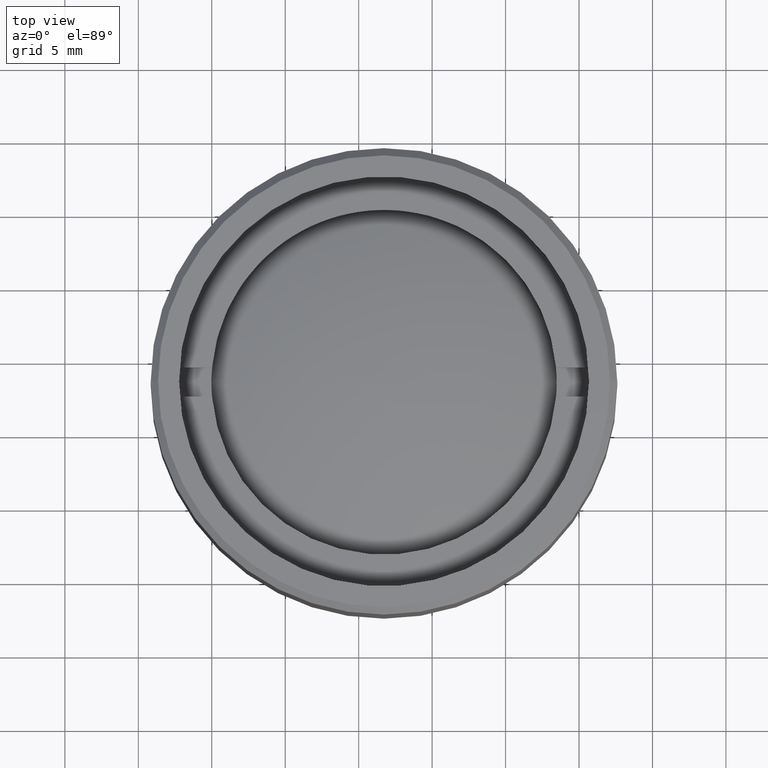
[diagram: clean part render]
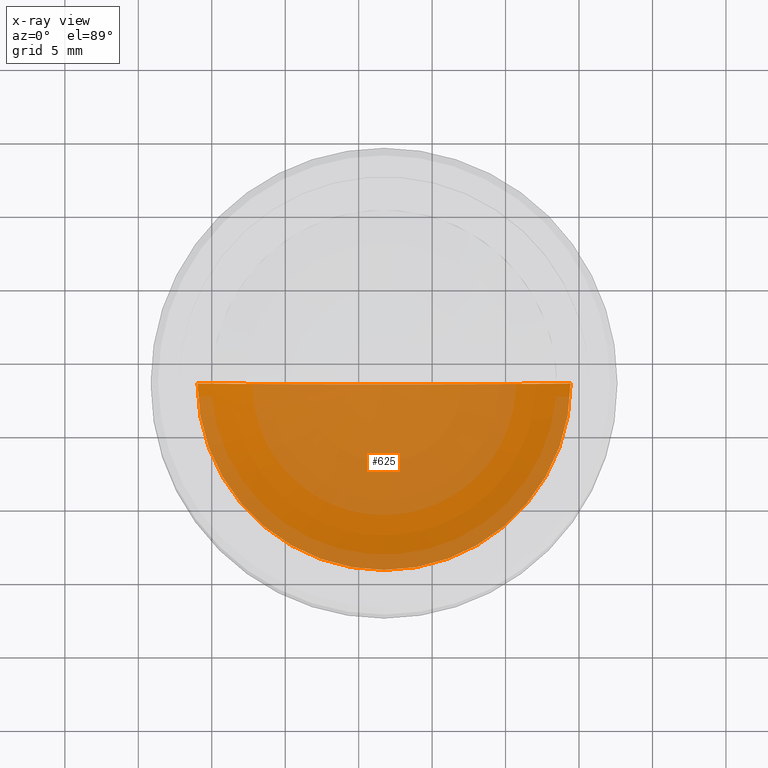
[diagram: x-ray — body ghosted, one internal face saturated and labeled with its STEP entity id]
A machine part, top view, then the same camera in x-ray: the body is ghosted and one INTERNAL B-rep face — a face not visible from any outside direction — is saturated and labeled: STEP entity #625.
In plain terms, the highlighted spherical surface has radius 25.9 mm.
Its self-contained STEP definition (entity closure, byte-faithful):
#47 = AXIS2_PLACEMENT_3D ( 'NONE', #369, #1159, #1302 ) ;
#225 = DIRECTION ( 'NONE',  ( -1.000000000000000000, 0.000000000000000000, 0.000000000000000000 ) ) ;
#252 = CARTESIAN_POINT ( 'NONE',  ( -12.69999999999999929, 0.000000000000000000, -4.672549700908839476 ) ) ;
#369 = CARTESIAN_POINT ( 'NONE',  ( 7.152778793843670539E-17, 0.000000000000000000, -4.672549700908850134 ) ) ;
#374 = CARTESIAN_POINT ( 'NONE',  ( 12.69999999999999929, 1.555301434917139813E-15, -4.672549700908839476 ) ) ;
#410 = CARTESIAN_POINT ( 'NONE',  ( 0.000000000000000000, 0.000000000000000000, 17.89999999999999858 ) ) ;
#540 = VERTEX_POINT ( 'NONE', #374 ) ;
#625 = ADVANCED_FACE ( 'NONE', ( #1668 ), #1551, .T. ) ;
#636 = EDGE_CURVE ( 'NONE', #540, #708, #1539, .T. ) ;
#639 = CARTESIAN_POINT ( 'NONE',  ( 0.000000000000000000, 0.000000000000000000, 17.89999999999999858 ) ) ;
#700 = EDGE_LOOP ( 'NONE', ( #1294, #1425 ) ) ;
#708 = VERTEX_POINT ( 'NONE', #252 ) ;
#919 = EDGE_CURVE ( 'NONE', #540, #708, #1131, .T. ) ;
#943 = DIRECTION ( 'NONE',  ( -1.224646799147351975E-16, 1.000000000000000000, -1.874699728327319615E-33 ) ) ;
#1131 = CIRCLE ( 'NONE', #1375, 25.89999999999999858 ) ;
#1159 = DIRECTION ( 'NONE',  ( 0.000000000000000000, 0.000000000000000000, -1.000000000000000000 ) ) ;
#1294 = ORIENTED_EDGE ( 'NONE', *, *, #919, .F. ) ;
#1302 = DIRECTION ( 'NONE',  ( -1.000000000000000000, 0.000000000000000000, 0.000000000000000000 ) ) ;
#1325 = AXIS2_PLACEMENT_3D ( 'NONE', #639, #1399, #225 ) ;
#1375 = AXIS2_PLACEMENT_3D ( 'NONE', #410, #943, #1458 ) ;
#1399 = DIRECTION ( 'NONE',  ( 0.000000000000000000, -0.000000000000000000, 1.000000000000000000 ) ) ;
#1425 = ORIENTED_EDGE ( 'NONE', *, *, #636, .T. ) ;
#1458 = DIRECTION ( 'NONE',  ( -1.000000000000000000, -1.224646799147351975E-16, 0.000000000000000000 ) ) ;
#1539 = CIRCLE ( 'NONE', #47, 12.69999999999999929 ) ;
#1551 = SPHERICAL_SURFACE ( 'NONE', #1325, 25.89999999999999858 ) ;
#1668 = FACE_OUTER_BOUND ( 'NONE', #700, .T. ) ;